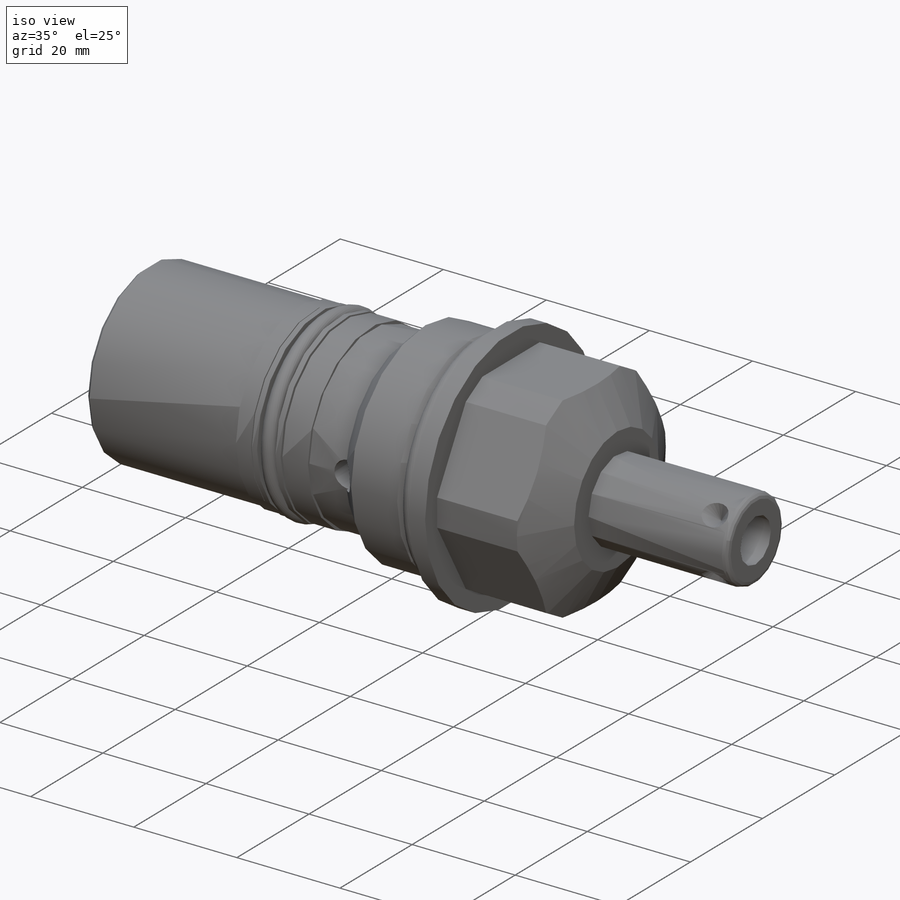
[diagram: iso view]
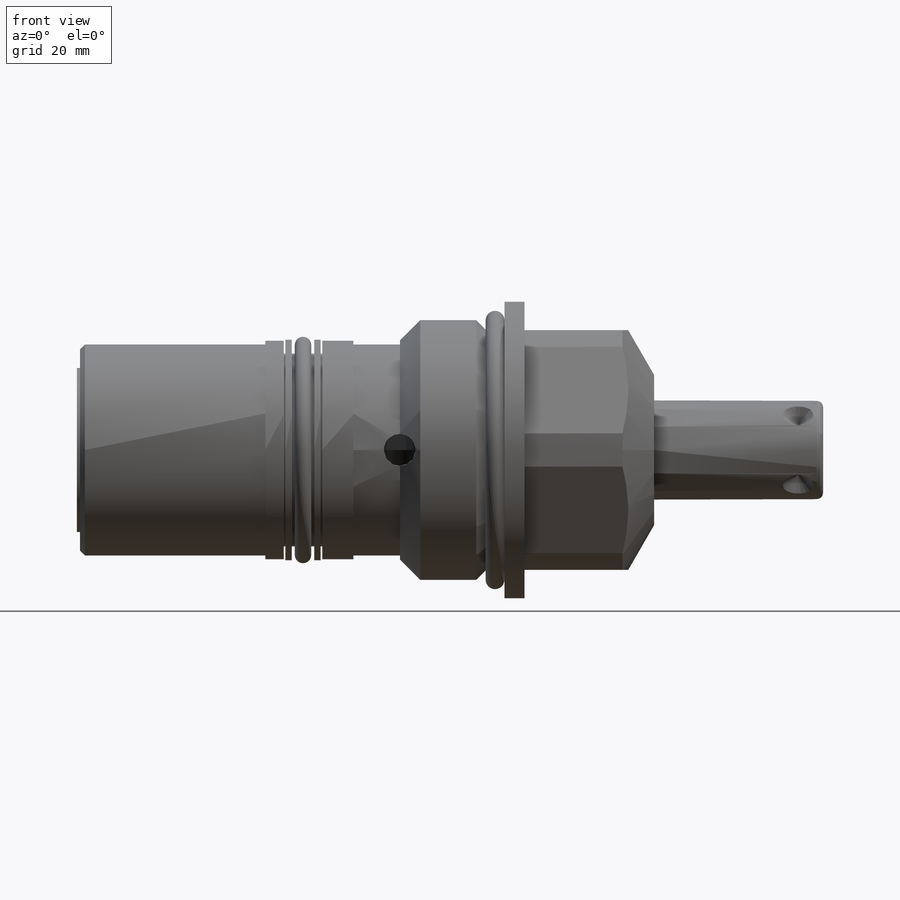
[diagram: front view]
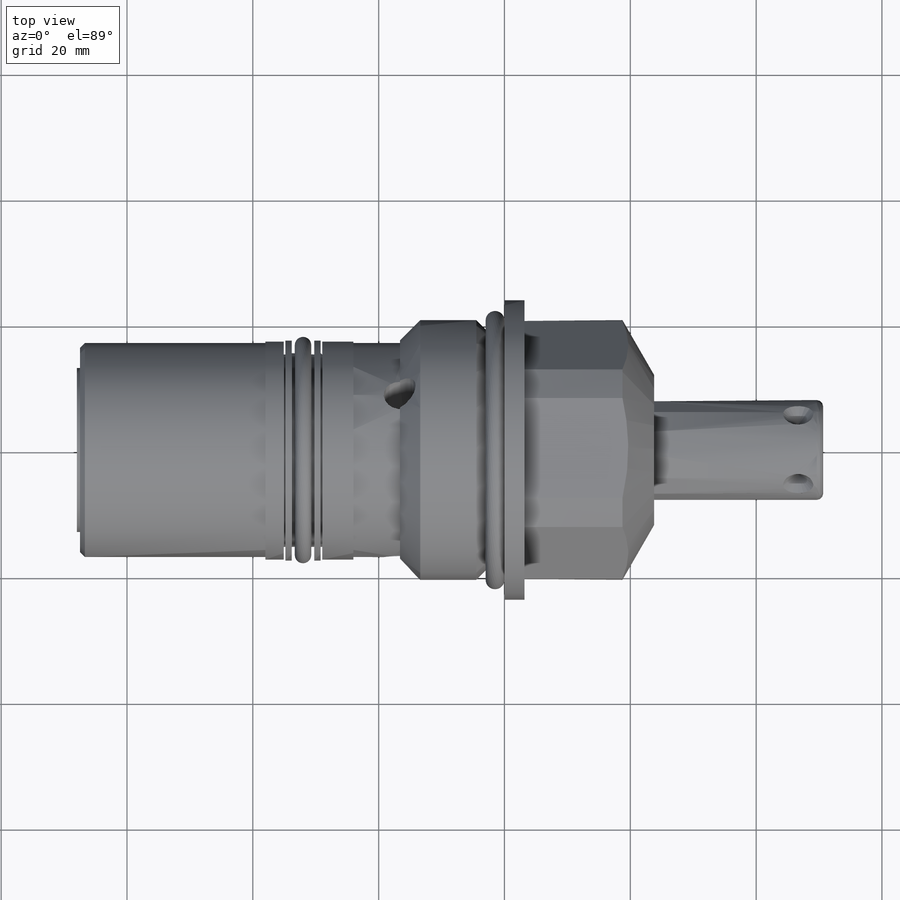
[diagram: top view]
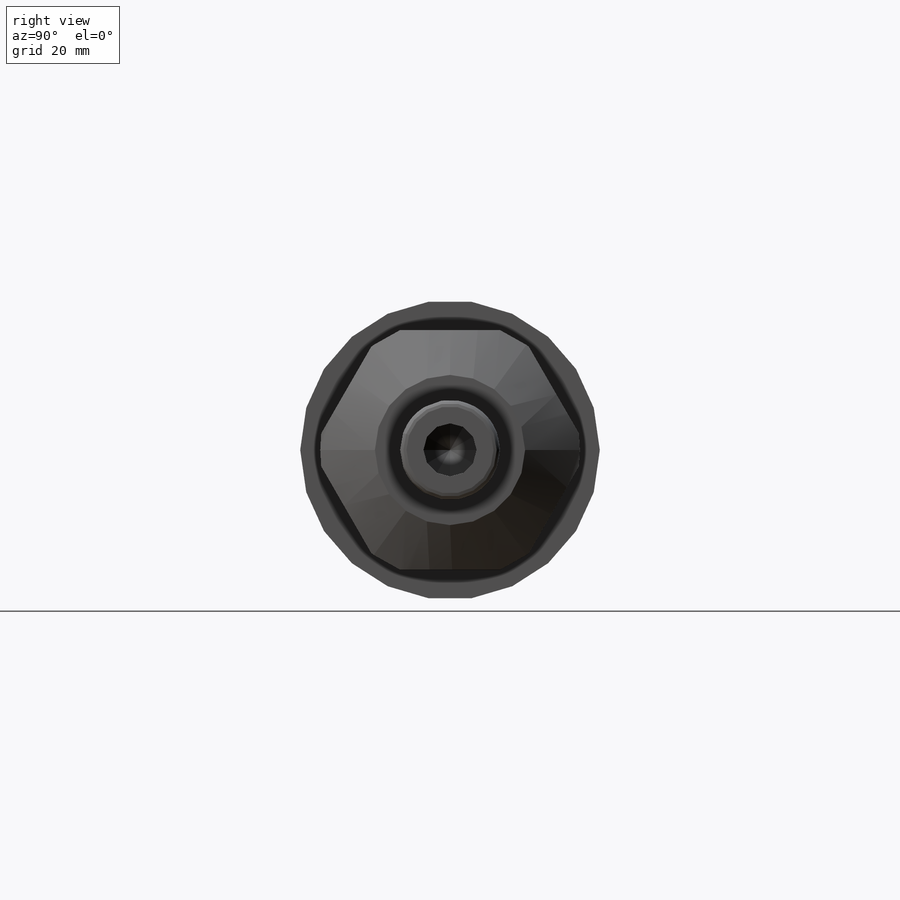
[diagram: right view]
SOLIDWORKS PART (.sldprt)
format: sldprt  version: not decoded by parser v0  size: 559,104 bytes
history: native  units: mm
features: sketch x19, plane x16, cut_revolve x7, cut_extrude x6, revolve x4, extrude x2, pattern_circular x2, material x1, chamfer x1 (+11 scaffold rows collapsed)
feature tree (69):
  scaffold x11  (default folders/planes/origin — collapsed)
  material  "Alloy Steel"
  plane  "Plane1"
  sketch  "Sketch1"  dims[D1=47.625mm]
  extrude  "Extrude1"  Depth=23.7744mm
  plane  "Plane2"
  sketch  "Sketch2"  dims[D1=41.275mm]
  cut_extrude  "Cut-Extrude1"  [1 undecoded]
  plane  "Plane3"
  sketch  "Sketch3"  dims[c1.D1=23.876mm c1.D2=7.874mm c2.D2=150.0deg c3.D2=7.874mm c4.D2=30.0deg]
  cut_revolve  "Cut-Revolve1"  Angle=360deg
  plane  "Plane5"
  sketch  "Sketch5"  dims[c1.D1=38.1mm c1.D2=~14.664697mm c2.D2=120.0deg c2.D3=~7.332348mm c3.D3=120.0deg c3.D2=~14.664697mm c4.D2=120.0deg c4.D3=~7.332348mm c5.D3=60.0deg]
  cut_extrude  "Cut-Extrude3"  [1 undecoded]
  plane  "Plane7"
  sketch  "Sketch7"  dims[D1=41.275mm]
  cut_extrude  "Cut-Extrude5"  [1 undecoded]
  plane  "Plane9"
  sketch  "Sketch9"  dims[c1.D1=2.9718mm c1.D2=~1.49225mm c2.D2=45.0deg c2.D3=38.2778mm]
  cut_revolve  "Cut-Revolve3"  Angle=360deg
  plane  "Plane10"
  sketch  "Sketch10"  dims[c1.D1=34.8488mm c1.D2=~1.61925mm c2.D2=45.0deg c2.D3=8.9281mm]
  cut_revolve  "Cut-Revolve4"  Angle=360deg
  plane  "Plane12"
  sketch  "Sketch12"  dims[D1=6.1087mm D2=30.7848mm D3=32.385mm]
  cut_revolve  "Cut-Revolve6"  Angle=360deg
  plane  "Plane14"
  sketch  "Sketch14"  dims[D1=13.97mm D2=34.036mm D3=29.464mm D4=7.4168mm]
  cut_revolve  "Cut-Revolve8"  Angle=360deg
  plane  "Plane15"
  sketch  "Sketch15"  dims[D1=2.9972mm D2=1.4986mm D3=41.275mm]
  revolve  "Revolve1"  Angle=360deg
  plane  "Plane16"
  sketch  "Sketch16"  dims[D1=1.016mm D2=19.6596mm D3=35.1536mm D4=0.254mm D5=0.254mm]
  revolve  "Revolve2"  Angle=360deg
  plane  "Plane17"
  sketch  "Sketch17"  dims[D1=2.6162mm D2=33.401mm D3=~1.78435mm]
  revolve  "Revolve3"  Angle=360deg
  plane  "Plane18"
  sketch  "S2D0001"  dims[D2=1.016mm D1=15.875mm D3=50.6476mm]
  revolve  "Revolve4"  Angle=360deg
  plane  "Plane19"
  sketch  "Sketch19"  dims[c1.D1=8.4328mm c1.D2=15.24mm c1.D3=2.8067mm c2.D3=59.0deg]
  cut_revolve  "Cut-Revolve9"  Angle=360deg
  plane  "Plane20"
  plane  "Plane21"
  sketch  "S2D0002"  dims[c1.D1=3.9624mm c1.D2=1.5875mm c2.D2=45.0deg c2.D3=4.826mm]
  cut_revolve  "Cut-Revolve10"  Angle=360deg
  chamfer  "Chamfer1"  Distance=0.762mm Angle=45deg
  sketch  "Sketch23"  dims[D1=5.0546mm D2=50.8mm]
  cut_extrude  "Cut-Extrude7"  [1 undecoded]
  sketch  "Sketch25"  dims[D1=6.2738mm]
  cut_extrude  "Cut-Extrude8"  Depth=0.762mm
  sketch  "Sketch26"  dims[D1=~11.624774mm]
  extrude  "Extrude2"  Depth=0.508mm
  sketch  "Sketch28"  dims[D1=~4.232068mm]
  cut_extrude  "Cut-Extrude9"  Depth=0.508mm
  pattern_circular  "CirPattern2"  Count=3 Angle=360deg
  pattern_circular  "CirPattern3"  Count=4 Angle=360deg
decode coverage: 37 of 41 modeling features carry decoded parameters
note: ~ marks probable driven/reference dimensions
note: 4 parameter values undecoded
summary: no parameter record found for 4 features
note: suppression state not decoded; provenance and decode notes live in map.json
